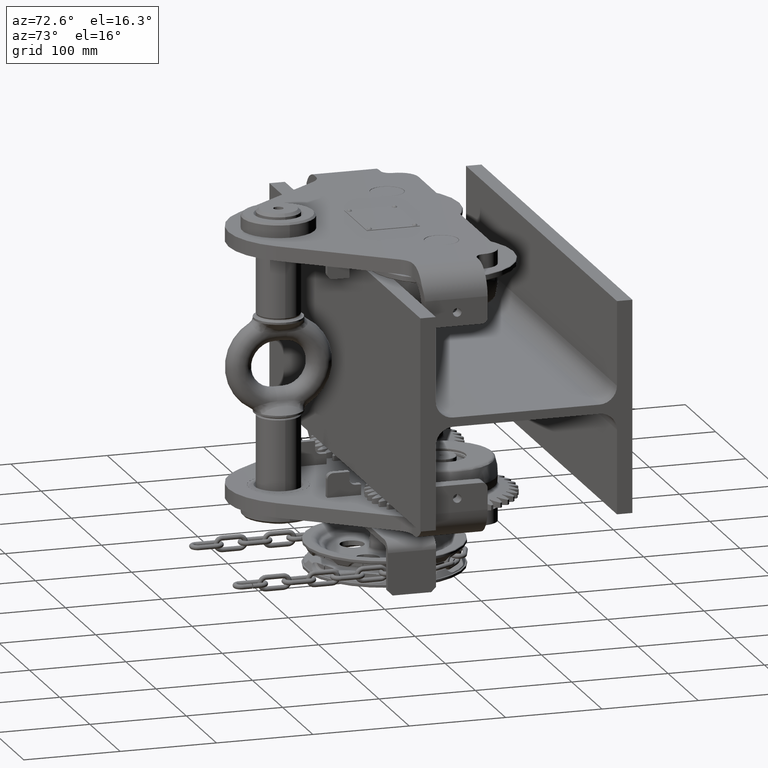
[diagram: clean part render]
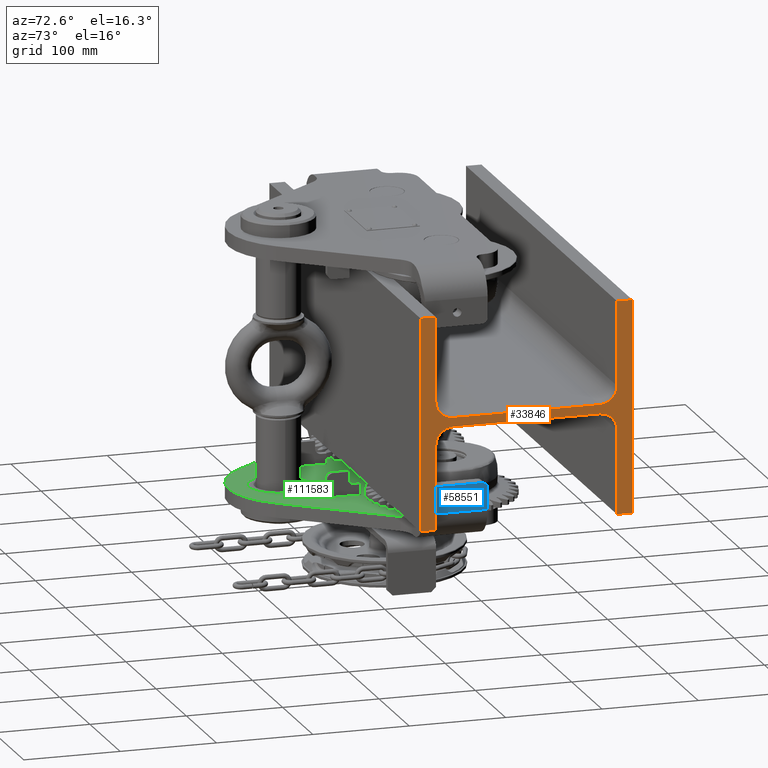
[diagram: same view with three faces highlighted in distinct colors, each labeled with its STEP entity id]
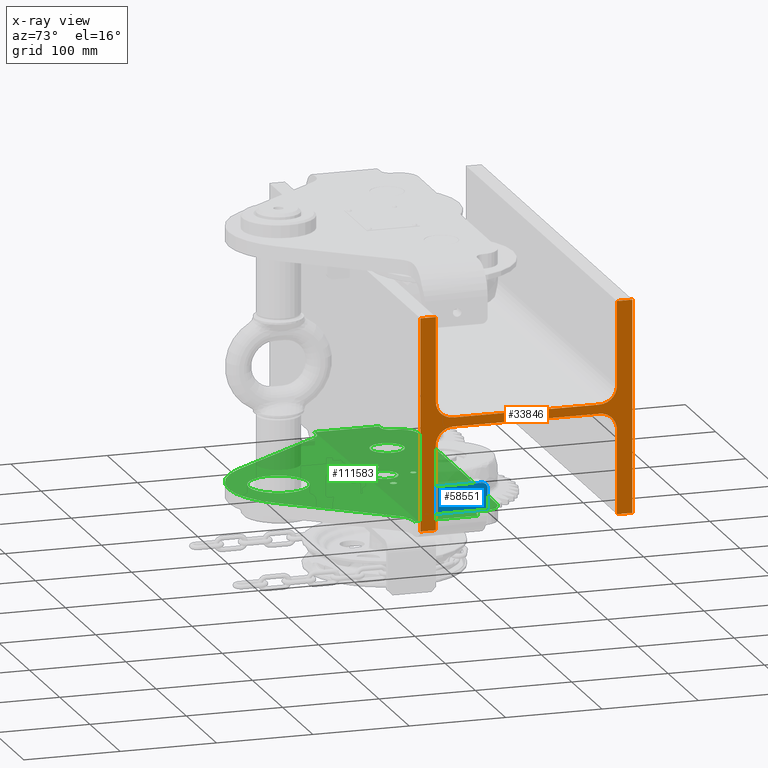
[diagram: x-ray of the same camera — body ghosted, the three highlighted faces saturated]
A machine part, auxiliary view with three faces highlighted in distinct colors.
The next image is the same camera in x-ray (body ghosted, the three faces saturated) — at least one of them is partly hidden behind the body in this view.
Their STEP definitions:

[orange] entity #33846 — the highlighted planar face has unit normal (-1, -0, -0).
#1236 = VERTEX_POINT ( 'NONE', #60660 ) ;
#2281 = VERTEX_POINT ( 'NONE', #28106 ) ;
#3316 = CARTESIAN_POINT ( 'NONE',  ( 249.9999999999998900, 94.00000000000008500, 22.75000000000008200 ) ) ;
#4116 = ORIENTED_EDGE ( 'NONE', *, *, #101947, .F. ) ;
#4841 = ORIENTED_EDGE ( 'NONE', *, *, #38331, .T. ) ;
#4998 = CARTESIAN_POINT ( 'NONE',  ( 249.9999999999998900, -93.99999999999985800, 110.0000000000000100 ) ) ;
#6548 = ORIENTED_EDGE ( 'NONE', *, *, #96724, .T. ) ;
#7384 = DIRECTION ( 'NONE',  ( -1.670477943807616000E-049, 1.000000000000000000, 9.102935034118153400E-016 ) ) ;
#8766 = EDGE_CURVE ( 'NONE', #31603, #54250, #67832, .T. ) ;
#9468 = ORIENTED_EDGE ( 'NONE', *, *, #18122, .F. ) ;
#9830 = DIRECTION ( 'NONE',  ( -1.000000000000000000, -2.480507177830958500E-050, -1.925929944387235900E-034 ) ) ;
#10920 = VECTOR ( 'NONE', #16391, 1000.000000000000000 ) ;
#12412 = DIRECTION ( 'NONE',  ( 1.000000000000000000, 0.0000000000000000000, 7.703719777548941700E-034 ) ) ;
#12937 = CARTESIAN_POINT ( 'NONE',  ( 249.9999999999998900, -109.9999999999998200, -110.0000000000000000 ) ) ;
#15134 = EDGE_CURVE ( 'NONE', #36576, #55048, #99071, .T. ) ;
#15568 = VECTOR ( 'NONE', #109955, 1000.000000000000000 ) ;
#15806 = CARTESIAN_POINT ( 'NONE',  ( 249.9999999999998900, 76.00000000000004300, 4.750000000000047100 ) ) ;
#15871 = CARTESIAN_POINT ( 'NONE',  ( 249.9999999999998900, 94.00000000000008500, -22.74999999999990800 ) ) ;
#16391 = DIRECTION ( 'NONE',  ( -1.925929944387235900E-034, -1.622250703616490400E-016, 1.000000000000000000 ) ) ;
#18122 = EDGE_CURVE ( 'NONE', #2281, #55388, #77370, .T. ) ;
#19631 = VERTEX_POINT ( 'NONE', #41894 ) ;
#21684 = CARTESIAN_POINT ( 'NONE',  ( 249.9999999999998900, -93.99999999999982900, -22.74999999999996800 ) ) ;
#22801 = LINE ( 'NONE', #114700, #56155 ) ;
#23813 = VERTEX_POINT ( 'NONE', #3316 ) ;
#24080 = CARTESIAN_POINT ( 'NONE',  ( 249.9999999999998900, -109.9999999999999100, 110.0000000000000000 ) ) ;
#25125 = VERTEX_POINT ( 'NONE', #21684 ) ;
#25307 = CARTESIAN_POINT ( 'NONE',  ( 249.9999999999998900, -93.99999999999981500, -110.0000000000000100 ) ) ;
#25975 = DIRECTION ( 'NONE',  ( 0.0000000000000000000, 1.000000000000000000, 4.293176542341493300E-017 ) ) ;
#26137 = CARTESIAN_POINT ( 'NONE',  ( 249.9999999999998900, -75.99999999999984400, -4.749999999999960900 ) ) ;
#26947 = CIRCLE ( 'NONE', #102681, 18.00000000000000000 ) ;
#27185 = VECTOR ( 'NONE', #64806, 1000.000000000000000 ) ;
#28106 = CARTESIAN_POINT ( 'NONE',  ( 249.9999999999998900, -109.9999999999999100, 110.0000000000000000 ) ) ;
#28927 = LINE ( 'NONE', #84871, #72166 ) ;
#29689 = CARTESIAN_POINT ( 'NONE',  ( 249.9999999999998900, -75.99999999999963100, 4.750000000000057700 ) ) ;
#30058 = VERTEX_POINT ( 'NONE', #12937 ) ;
#30320 = VECTOR ( 'NONE', #33416, 1000.000000000000000 ) ;
#30683 = DIRECTION ( 'NONE',  ( 0.0000000000000000000, 1.000000000000000000, 4.293176542341493300E-017 ) ) ;
#31603 = VERTEX_POINT ( 'NONE', #43209 ) ;
#33416 = DIRECTION ( 'NONE',  ( 1.925929944387235900E-034, 6.791627250939927600E-016, -1.000000000000000000 ) ) ;
#33846 = ADVANCED_FACE ( 'NONE', ( #65989 ), #54478, .F. ) ;
#34610 = VERTEX_POINT ( 'NONE', #15806 ) ;
#35405 = CARTESIAN_POINT ( 'NONE',  ( 249.9999999999998900, 76.00000000000007100, -22.74999999999991500 ) ) ;
#35610 = CARTESIAN_POINT ( 'NONE',  ( 249.9999999999998900, -75.99999999999984400, -4.749999999999960900 ) ) ;
#36576 = VERTEX_POINT ( 'NONE', #88996 ) ;
#37172 = VERTEX_POINT ( 'NONE', #43309 ) ;
#37503 = EDGE_CURVE ( 'NONE', #46367, #1236, #55481, .T. ) ;
#37983 = DIRECTION ( 'NONE',  ( -1.000000000000000000, -0.0000000000000000000, -7.703719777548941700E-034 ) ) ;
#38331 = EDGE_CURVE ( 'NONE', #2281, #30058, #46740, .T. ) ;
#38372 = CARTESIAN_POINT ( 'NONE',  ( 249.9999999999998900, -75.99999999999984400, -22.74999999999996400 ) ) ;
#38939 = DIRECTION ( 'NONE',  ( 1.000000000000000000, 0.0000000000000000000, 7.703719777548941700E-034 ) ) ;
#41490 = ORIENTED_EDGE ( 'NONE', *, *, #8766, .T. ) ;
#41894 = CARTESIAN_POINT ( 'NONE',  ( 249.9999999999998900, -93.99999999999981500, -110.0000000000000100 ) ) ;
#42095 = EDGE_CURVE ( 'NONE', #46367, #37172, #74177, .T. ) ;
#42757 = VECTOR ( 'NONE', #101445, 1000.000000000000000 ) ;
#43097 = DIRECTION ( 'NONE',  ( -1.925929944387235900E-034, -3.610472452587044400E-016, 1.000000000000000000 ) ) ;
#43209 = CARTESIAN_POINT ( 'NONE',  ( 249.9999999999998900, 110.0000000000001600, -109.9999999999999400 ) ) ;
#43257 = AXIS2_PLACEMENT_3D ( 'NONE', #35405, #61173, #70111 ) ;
#43309 = CARTESIAN_POINT ( 'NONE',  ( 249.9999999999998900, 76.00000000000007100, -4.749999999999940500 ) ) ;
#43406 = ORIENTED_EDGE ( 'NONE', *, *, #37503, .T. ) ;
#43964 = ORIENTED_EDGE ( 'NONE', *, *, #87360, .T. ) ;
#44012 = VECTOR ( 'NONE', #49632, 1000.000000000000000 ) ;
#44139 = VECTOR ( 'NONE', #64842, 1000.000000000000000 ) ;
#46130 = CARTESIAN_POINT ( 'NONE',  ( 249.9999999999998900, -109.9999999999999100, 110.0000000000000000 ) ) ;
#46367 = VERTEX_POINT ( 'NONE', #15871 ) ;
#46740 = LINE ( 'NONE', #46130, #27185 ) ;
#47706 = CARTESIAN_POINT ( 'NONE',  ( 249.9999999999998900, 94.00000000000014200, -109.9999999999999100 ) ) ;
#48050 = VECTOR ( 'NONE', #7384, 1000.000000000000000 ) ;
#49632 = DIRECTION ( 'NONE',  ( 1.670477943807623000E-049, 1.000000000000000000, -8.244299725649890000E-016 ) ) ;
#53354 = EDGE_CURVE ( 'NONE', #109257, #54250, #28927, .T. ) ;
#53418 = CARTESIAN_POINT ( 'NONE',  ( 249.9999999999998900, 110.0000000000001600, 110.0000000000000700 ) ) ;
#54250 = VERTEX_POINT ( 'NONE', #53418 ) ;
#54478 = PLANE ( 'NONE',  #107002 ) ;
#54754 = ORIENTED_EDGE ( 'NONE', *, *, #15134, .F. ) ;
#54913 = ORIENTED_EDGE ( 'NONE', *, *, #103802, .T. ) ;
#55048 = VERTEX_POINT ( 'NONE', #29689 ) ;
#55388 = VERTEX_POINT ( 'NONE', #78339 ) ;
#55481 = LINE ( 'NONE', #77548, #30320 ) ;
#56155 = VECTOR ( 'NONE', #43097, 1000.000000000000000 ) ;
#58556 = ORIENTED_EDGE ( 'NONE', *, *, #94132, .F. ) ;
#60660 = CARTESIAN_POINT ( 'NONE',  ( 249.9999999999998900, 94.00000000000014200, -109.9999999999999100 ) ) ;
#61173 = DIRECTION ( 'NONE',  ( 1.000000000000000000, 0.0000000000000000000, 7.703719777548941700E-034 ) ) ;
#62280 = LINE ( 'NONE', #4998, #42757 ) ;
#63206 = EDGE_CURVE ( 'NONE', #55388, #36576, #62280, .T. ) ;
#64806 = DIRECTION ( 'NONE',  ( 1.925929944387235900E-034, 4.554710308673295900E-016, -1.000000000000000000 ) ) ;
#64842 = DIRECTION ( 'NONE',  ( -1.925929944387235900E-034, -4.293176542341593100E-017, 1.000000000000000000 ) ) ;
#64887 = DIRECTION ( 'NONE',  ( 0.0000000000000000000, 0.0000000000000000000, 1.000000000000000000 ) ) ;
#65638 = CARTESIAN_POINT ( 'NONE',  ( 249.9999999999998900, -75.99999999999963100, 22.75000000000007100 ) ) ;
#65989 = FACE_OUTER_BOUND ( 'NONE', #71126, .T. ) ;
#67030 = ORIENTED_EDGE ( 'NONE', *, *, #53354, .F. ) ;
#67832 = LINE ( 'NONE', #92487, #44139 ) ;
#67942 = LINE ( 'NONE', #35610, #88858 ) ;
#68150 = DIRECTION ( 'NONE',  ( 0.0000000000000000000, 1.000000000000000000, 4.293176542341493300E-017 ) ) ;
#69220 = CARTESIAN_POINT ( 'NONE',  ( 249.9999999999998900, 94.00000000000005700, 110.0000000000000700 ) ) ;
#70111 = DIRECTION ( 'NONE',  ( 0.0000000000000000000, 0.0000000000000000000, -1.000000000000000000 ) ) ;
#70905 = DIRECTION ( 'NONE',  ( -1.925929944387235900E-034, -4.293176542341593100E-017, 1.000000000000000000 ) ) ;
#71126 = EDGE_LOOP ( 'NONE', ( #73085, #84370, #43964, #88911, #43406, #54913, #41490, #67030, #58556, #4116, #71763, #54754, #113394, #9468, #4841, #6548 ) ) ;
#71763 = ORIENTED_EDGE ( 'NONE', *, *, #84324, .F. ) ;
#72094 = CIRCLE ( 'NONE', #84841, 18.00000000000002500 ) ;
#72166 = VECTOR ( 'NONE', #30683, 1000.000000000000000 ) ;
#73085 = ORIENTED_EDGE ( 'NONE', *, *, #84366, .T. ) ;
#74105 = DIRECTION ( 'NONE',  ( 0.0000000000000000000, 0.0000000000000000000, -1.000000000000000000 ) ) ;
#74177 = CIRCLE ( 'NONE', #43257, 17.99999999999997500 ) ;
#74665 = DIRECTION ( 'NONE',  ( 0.0000000000000000000, 0.0000000000000000000, -1.000000000000000000 ) ) ;
#77370 = LINE ( 'NONE', #24080, #48050 ) ;
#77548 = CARTESIAN_POINT ( 'NONE',  ( 249.9999999999998900, 94.00000000000008500, -22.74999999999990800 ) ) ;
#78339 = CARTESIAN_POINT ( 'NONE',  ( 249.9999999999998900, -93.99999999999985800, 110.0000000000000100 ) ) ;
#80595 = VECTOR ( 'NONE', #68150, 1000.000000000000000 ) ;
#83410 = LINE ( 'NONE', #113263, #80595 ) ;
#83460 = CARTESIAN_POINT ( 'NONE',  ( 249.9999999999998900, 76.00000000000004300, 22.75000000000008200 ) ) ;
#83847 = LINE ( 'NONE', #47706, #15568 ) ;
#84324 = EDGE_CURVE ( 'NONE', #55048, #34610, #83410, .T. ) ;
#84366 = EDGE_CURVE ( 'NONE', #19631, #25125, #94385, .T. ) ;
#84370 = ORIENTED_EDGE ( 'NONE', *, *, #112057, .T. ) ;
#84841 = AXIS2_PLACEMENT_3D ( 'NONE', #83460, #38939, #74105 ) ;
#84871 = CARTESIAN_POINT ( 'NONE',  ( 249.9999999999998900, 94.00000000000005700, 110.0000000000000700 ) ) ;
#85477 = CARTESIAN_POINT ( 'NONE',  ( 249.9999999999998900, -109.9999999999998200, -110.0000000000000000 ) ) ;
#87360 = EDGE_CURVE ( 'NONE', #108914, #37172, #67942, .T. ) ;
#88858 = VECTOR ( 'NONE', #25975, 1000.000000000000000 ) ;
#88911 = ORIENTED_EDGE ( 'NONE', *, *, #42095, .F. ) ;
#88996 = CARTESIAN_POINT ( 'NONE',  ( 249.9999999999998900, -93.99999999999963100, 22.75000000000000700 ) ) ;
#89192 = CARTESIAN_POINT ( 'NONE',  ( 249.9999999999998900, -75.99999999999984400, -22.74999999999996400 ) ) ;
#91413 = LINE ( 'NONE', #85477, #44012 ) ;
#92487 = CARTESIAN_POINT ( 'NONE',  ( 249.9999999999998900, 110.0000000000001600, -109.9999999999999400 ) ) ;
#94132 = EDGE_CURVE ( 'NONE', #23813, #109257, #22801, .T. ) ;
#94385 = LINE ( 'NONE', #25307, #10920 ) ;
#96724 = EDGE_CURVE ( 'NONE', #30058, #19631, #91413, .T. ) ;
#99071 = CIRCLE ( 'NONE', #112646, 18.00000000000001400 ) ;
#101445 = DIRECTION ( 'NONE',  ( 1.925929944387235900E-034, 2.667384474064545400E-015, -1.000000000000000000 ) ) ;
#101947 = EDGE_CURVE ( 'NONE', #34610, #23813, #72094, .T. ) ;
#102681 = AXIS2_PLACEMENT_3D ( 'NONE', #38372, #37983, #64887 ) ;
#103802 = EDGE_CURVE ( 'NONE', #1236, #31603, #83847, .T. ) ;
#107002 = AXIS2_PLACEMENT_3D ( 'NONE', #89192, #9830, #70905 ) ;
#108914 = VERTEX_POINT ( 'NONE', #26137 ) ;
#109257 = VERTEX_POINT ( 'NONE', #69220 ) ;
#109955 = DIRECTION ( 'NONE',  ( 3.340955887615240800E-049, 1.000000000000000000, -1.691791710553390200E-015 ) ) ;
#112057 = EDGE_CURVE ( 'NONE', #25125, #108914, #26947, .T. ) ;
#112646 = AXIS2_PLACEMENT_3D ( 'NONE', #65638, #12412, #74665 ) ;
#113263 = CARTESIAN_POINT ( 'NONE',  ( 249.9999999999998900, -75.99999999999963100, 4.750000000000040900 ) ) ;
#113394 = ORIENTED_EDGE ( 'NONE', *, *, #63206, .F. ) ;
#114700 = CARTESIAN_POINT ( 'NONE',  ( 249.9999999999998900, 94.00000000000008500, 22.75000000000008200 ) ) ;

[blue] entity #58551 — the highlighted planar face has unit normal (1, 0, 0).
#3618 = DIRECTION ( 'NONE',  ( 0.0000000000000000000, -1.000000000000000000, 0.0000000000000000000 ) ) ;
#6225 = EDGE_CURVE ( 'NONE', #33947, #98155, #7227, .T. ) ;
#6643 = FACE_OUTER_BOUND ( 'NONE', #46968, .T. ) ;
#7227 = LINE ( 'NONE', #96524, #25254 ) ;
#7568 = EDGE_CURVE ( 'NONE', #13212, #26899, #25960, .T. ) ;
#8314 = CARTESIAN_POINT ( 'NONE',  ( 194.9999999999999700, -84.68263209334946900, -87.16496139423934200 ) ) ;
#13212 = VERTEX_POINT ( 'NONE', #56137 ) ;
#15714 = ORIENTED_EDGE ( 'NONE', *, *, #86000, .F. ) ;
#16427 = FACE_BOUND ( 'NONE', #78749, .T. ) ;
#20030 = EDGE_CURVE ( 'NONE', #26899, #13212, #23499, .T. ) ;
#23499 = CIRCLE ( 'NONE', #35029, 4.500000000000003600 ) ;
#25254 = VECTOR ( 'NONE', #70467, 1000.000000000000100 ) ;
#25960 = CIRCLE ( 'NONE', #43779, 4.500000000000003600 ) ;
#26829 = CARTESIAN_POINT ( 'NONE',  ( 194.9999999999999700, -23.00000000000002100, -81.99999999999965900 ) ) ;
#26899 = VERTEX_POINT ( 'NONE', #100919 ) ;
#27994 = ORIENTED_EDGE ( 'NONE', *, *, #37885, .T. ) ;
#29268 = AXIS2_PLACEMENT_3D ( 'NONE', #33946, #96251, #34710 ) ;
#29368 = ORIENTED_EDGE ( 'NONE', *, *, #20030, .F. ) ;
#32974 = CIRCLE ( 'NONE', #60668, 6.000000000000005300 ) ;
#33946 = CARTESIAN_POINT ( 'NONE',  ( 194.9999999999999700, -29.00000000000001800, -87.99999999999965900 ) ) ;
#33947 = VERTEX_POINT ( 'NONE', #8314 ) ;
#34585 = LINE ( 'NONE', #111366, #54137 ) ;
#34710 = DIRECTION ( 'NONE',  ( 0.0000000000000000000, -1.000000000000000000, 0.0000000000000000000 ) ) ;
#35029 = AXIS2_PLACEMENT_3D ( 'NONE', #47921, #110174, #3618 ) ;
#35740 = CARTESIAN_POINT ( 'NONE',  ( 194.9999999999999700, -87.89188747946420200, -109.9999999999996900 ) ) ;
#37885 = EDGE_CURVE ( 'NONE', #105371, #33947, #32974, .T. ) ;
#43779 = AXIS2_PLACEMENT_3D ( 'NONE', #110623, #57262, #102421 ) ;
#44714 = DIRECTION ( 'NONE',  ( 0.0000000000000000000, 1.224606353822377300E-016, -1.000000000000000000 ) ) ;
#46968 = EDGE_LOOP ( 'NONE', ( #106909, #27994, #59076, #110217, #15714, #48053 ) ) ;
#47809 = CARTESIAN_POINT ( 'NONE',  ( 194.9999999999999700, -231.0000000000000000, -109.9999999999997000 ) ) ;
#47921 = CARTESIAN_POINT ( 'NONE',  ( 194.9999999999999700, -54.50000000000002100, -95.99999999999967300 ) ) ;
#48053 = ORIENTED_EDGE ( 'NONE', *, *, #82122, .T. ) ;
#48260 = VERTEX_POINT ( 'NONE', #60251 ) ;
#48581 = CARTESIAN_POINT ( 'NONE',  ( 194.9999999999999700, -78.74102368090005700, -87.99999999999967300 ) ) ;
#52766 = VERTEX_POINT ( 'NONE', #107982 ) ;
#54137 = VECTOR ( 'NONE', #57251, 1000.000000000000000 ) ;
#56137 = CARTESIAN_POINT ( 'NONE',  ( 194.9999999999999700, -59.00000000000002100, -95.99999999999967300 ) ) ;
#57251 = DIRECTION ( 'NONE',  ( 0.0000000000000000000, 1.000000000000000000, 1.224606353822377300E-016 ) ) ;
#57262 = DIRECTION ( 'NONE',  ( 1.000000000000000000, 0.0000000000000000000, 0.0000000000000000000 ) ) ;
#58551 = ADVANCED_FACE ( 'NONE', ( #16427, #6643 ), #92178, .T. ) ;
#59076 = ORIENTED_EDGE ( 'NONE', *, *, #6225, .T. ) ;
#60251 = CARTESIAN_POINT ( 'NONE',  ( 194.9999999999999700, -23.00000000000001800, -109.9999999999996700 ) ) ;
#60504 = AXIS2_PLACEMENT_3D ( 'NONE', #47809, #110430, #108898 ) ;
#60668 = AXIS2_PLACEMENT_3D ( 'NONE', #48581, #65322, #84070 ) ;
#62465 = ORIENTED_EDGE ( 'NONE', *, *, #7568, .F. ) ;
#65322 = DIRECTION ( 'NONE',  ( 1.000000000000000000, 0.0000000000000000000, 0.0000000000000000000 ) ) ;
#65359 = VERTEX_POINT ( 'NONE', #111334 ) ;
#65673 = VECTOR ( 'NONE', #44714, 1000.000000000000000 ) ;
#65745 = VECTOR ( 'NONE', #87667, 1000.000000000000000 ) ;
#70467 = DIRECTION ( 'NONE',  ( 0.0000000000000000000, -0.1391731009600585300, -0.9902680687415712500 ) ) ;
#78749 = EDGE_LOOP ( 'NONE', ( #62465, #29368 ) ) ;
#81426 = EDGE_CURVE ( 'NONE', #98155, #48260, #34585, .T. ) ;
#82122 = EDGE_CURVE ( 'NONE', #52766, #65359, #96964, .T. ) ;
#84070 = DIRECTION ( 'NONE',  ( 0.0000000000000000000, -1.000000000000000000, 0.0000000000000000000 ) ) ;
#86000 = EDGE_CURVE ( 'NONE', #52766, #48260, #89365, .T. ) ;
#86521 = CARTESIAN_POINT ( 'NONE',  ( 194.9999999999999700, -231.0000000000000000, -81.99999999999968700 ) ) ;
#87667 = DIRECTION ( 'NONE',  ( 0.0000000000000000000, 1.000000000000000000, 1.224606353822377300E-016 ) ) ;
#89365 = LINE ( 'NONE', #26829, #65673 ) ;
#92178 = PLANE ( 'NONE',  #60504 ) ;
#95166 = EDGE_CURVE ( 'NONE', #105371, #65359, #104710, .T. ) ;
#96251 = DIRECTION ( 'NONE',  ( 1.000000000000000000, 0.0000000000000000000, 0.0000000000000000000 ) ) ;
#96524 = CARTESIAN_POINT ( 'NONE',  ( 194.9999999999999700, -89.99999999999997200, -124.9999999999996700 ) ) ;
#96964 = CIRCLE ( 'NONE', #29268, 5.999999999999998200 ) ;
#98155 = VERTEX_POINT ( 'NONE', #35740 ) ;
#100919 = CARTESIAN_POINT ( 'NONE',  ( 194.9999999999999700, -50.00000000000001400, -95.99999999999967300 ) ) ;
#102421 = DIRECTION ( 'NONE',  ( 0.0000000000000000000, -1.000000000000000000, 0.0000000000000000000 ) ) ;
#104710 = LINE ( 'NONE', #86521, #65745 ) ;
#105371 = VERTEX_POINT ( 'NONE', #115268 ) ;
#106909 = ORIENTED_EDGE ( 'NONE', *, *, #95166, .F. ) ;
#107982 = CARTESIAN_POINT ( 'NONE',  ( 194.9999999999999700, -23.00000000000002100, -87.99999999999965900 ) ) ;
#108898 = DIRECTION ( 'NONE',  ( 0.0000000000000000000, -1.000000000000000000, -1.224606353822377300E-016 ) ) ;
#110174 = DIRECTION ( 'NONE',  ( 1.000000000000000000, 0.0000000000000000000, 0.0000000000000000000 ) ) ;
#110217 = ORIENTED_EDGE ( 'NONE', *, *, #81426, .T. ) ;
#110430 = DIRECTION ( 'NONE',  ( 1.000000000000000000, 0.0000000000000000000, 0.0000000000000000000 ) ) ;
#110623 = CARTESIAN_POINT ( 'NONE',  ( 194.9999999999999700, -54.50000000000002100, -95.99999999999967300 ) ) ;
#111334 = CARTESIAN_POINT ( 'NONE',  ( 194.9999999999999700, -29.00000000000002500, -81.99999999999965900 ) ) ;
#111366 = CARTESIAN_POINT ( 'NONE',  ( 194.9999999999999700, -231.0000000000000000, -109.9999999999997000 ) ) ;
#115268 = CARTESIAN_POINT ( 'NONE',  ( 194.9999999999999700, -78.74102368090005700, -81.99999999999967300 ) ) ;

[green] entity #111583 — the highlighted planar face has unit normal (0, -0, 1).
#1005 = CARTESIAN_POINT ( 'NONE',  ( 159.6978176102733800, -110.0000000000000300, -124.9999999999996900 ) ) ;
#1563 = ORIENTED_EDGE ( 'NONE', *, *, #20175, .T. ) ;
#1644 = ORIENTED_EDGE ( 'NONE', *, *, #36986, .T. ) ;
#1931 = AXIS2_PLACEMENT_3D ( 'NONE', #91564, #110578, #38178 ) ;
#2565 = DIRECTION ( 'NONE',  ( -0.0000000000000000000, 1.224606353822377300E-016, -1.000000000000000000 ) ) ;
#2594 = CARTESIAN_POINT ( 'NONE',  ( -90.00000000000002800, -38.00000000000001400, -124.9999999999996700 ) ) ;
#2692 = CIRCLE ( 'NONE', #104634, 3.399999999999986100 ) ;
#2806 = CARTESIAN_POINT ( 'NONE',  ( -159.6978176102733800, -89.99999999999997200, -124.9999999999996700 ) ) ;
#3625 = ORIENTED_EDGE ( 'NONE', *, *, #94483, .T. ) ;
#4012 = EDGE_CURVE ( 'NONE', #4830, #21620, #50982, .T. ) ;
#4372 = CIRCLE ( 'NONE', #23638, 20.00000000000000400 ) ;
#4603 = CARTESIAN_POINT ( 'NONE',  ( -164.9999999999999700, -89.99999999999985800, -124.9999999999996900 ) ) ;
#4667 = EDGE_CURVE ( 'NONE', #115499, #67163, #105013, .T. ) ;
#4830 = VERTEX_POINT ( 'NONE', #75712 ) ;
#5021 = FACE_BOUND ( 'NONE', #5945, .T. ) ;
#5044 = ORIENTED_EDGE ( 'NONE', *, *, #61356, .T. ) ;
#5450 = DIRECTION ( 'NONE',  ( 0.0000000000000000000, -1.224606353822377300E-016, 1.000000000000000000 ) ) ;
#5945 = EDGE_LOOP ( 'NONE', ( #21990, #85013 ) ) ;
#6077 = VECTOR ( 'NONE', #22428, 1000.000000000000000 ) ;
#6449 = DIRECTION ( 'NONE',  ( 0.0000000000000000000, -1.000000000000000000, 0.0000000000000000000 ) ) ;
#6496 = VERTEX_POINT ( 'NONE', #92978 ) ;
#7233 = AXIS2_PLACEMENT_3D ( 'NONE', #52906, #71612, #9390 ) ;
#8486 = VECTOR ( 'NONE', #50859, 1000.000000000000100 ) ;
#8807 = CIRCLE ( 'NONE', #21584, 13.99999999999999800 ) ;
#8915 = VECTOR ( 'NONE', #70106, 1000.000000000000000 ) ;
#9390 = DIRECTION ( 'NONE',  ( 0.0000000000000000000, -1.000000000000000000, 0.0000000000000000000 ) ) ;
#9860 = AXIS2_PLACEMENT_3D ( 'NONE', #90765, #56469, #74455 ) ;
#9909 = CARTESIAN_POINT ( 'NONE',  ( 149.9999999987898600, -231.0000000017486200, -124.9999999999997000 ) ) ;
#10269 = ORIENTED_EDGE ( 'NONE', *, *, #56628, .F. ) ;
#10620 = FACE_BOUND ( 'NONE', #36080, .T. ) ;
#11878 = CARTESIAN_POINT ( 'NONE',  ( 160.0000000000000000, -23.00000000000002100, -124.9999999999996700 ) ) ;
#11910 = DIRECTION ( 'NONE',  ( 0.0000000000000000000, -1.224606353822377300E-016, 1.000000000000000000 ) ) ;
#13128 = EDGE_LOOP ( 'NONE', ( #90852, #15153 ) ) ;
#13286 = VERTEX_POINT ( 'NONE', #11878 ) ;
#15028 = CIRCLE ( 'NONE', #83088, 3.399999999999986100 ) ;
#15153 = ORIENTED_EDGE ( 'NONE', *, *, #65316, .F. ) ;
#15421 = AXIS2_PLACEMENT_3D ( 'NONE', #30652, #75508, #30260 ) ;
#15636 = EDGE_CURVE ( 'NONE', #64899, #35498, #72593, .T. ) ;
#16777 = CARTESIAN_POINT ( 'NONE',  ( -2.604107009682261500E-014, -83.07999999999999800, -124.9999999999996700 ) ) ;
#17098 = ORIENTED_EDGE ( 'NONE', *, *, #100995, .T. ) ;
#17159 = ORIENTED_EDGE ( 'NONE', *, *, #101268, .F. ) ;
#17308 = VERTEX_POINT ( 'NONE', #99883 ) ;
#17405 = CARTESIAN_POINT ( 'NONE',  ( -90.00000000000002800, -20.50000000000000700, -124.9999999999996700 ) ) ;
#17582 = CARTESIAN_POINT ( 'NONE',  ( -130.0100000000000200, -12.98999999999997700, -124.9999999999996700 ) ) ;
#18024 = AXIS2_PLACEMENT_3D ( 'NONE', #87339, #61569, #96228 ) ;
#18945 = CARTESIAN_POINT ( 'NONE',  ( -143.9943650573695200, -97.61446093548219900, -124.9999999999996700 ) ) ;
#19506 = CIRCLE ( 'NONE', #9860, 13.99999999999999800 ) ;
#19523 = DIRECTION ( 'NONE',  ( 1.000000000000000000, 0.0000000000000000000, 0.0000000000000000000 ) ) ;
#19642 = DIRECTION ( 'NONE',  ( 1.387778780781445500E-015, -1.000000000000000000, 0.0000000000000000000 ) ) ;
#19650 = EDGE_CURVE ( 'NONE', #81788, #83354, #111484, .T. ) ;
#19861 = VERTEX_POINT ( 'NONE', #107621 ) ;
#20147 = DIRECTION ( 'NONE',  ( 0.0000000000000000000, -1.000000000000000000, 0.0000000000000000000 ) ) ;
#20175 = EDGE_CURVE ( 'NONE', #34210, #115447, #111233, .T. ) ;
#21178 = DIRECTION ( 'NONE',  ( 0.0000000000000000000, -1.224606353822377300E-016, 1.000000000000000000 ) ) ;
#21553 = AXIS2_PLACEMENT_3D ( 'NONE', #61746, #71909, #89042 ) ;
#21584 = AXIS2_PLACEMENT_3D ( 'NONE', #34802, #115423, #104912 ) ;
#21620 = VERTEX_POINT ( 'NONE', #39740 ) ;
#21774 = DIRECTION ( 'NONE',  ( 0.0000000000000000000, -1.000000000000000000, 0.0000000000000000000 ) ) ;
#21990 = ORIENTED_EDGE ( 'NONE', *, *, #31389, .F. ) ;
#22428 = DIRECTION ( 'NONE',  ( 1.000000000000000000, 1.572456643570348900E-015, 1.925640396826458500E-031 ) ) ;
#22947 = AXIS2_PLACEMENT_3D ( 'NONE', #57560, #48285, #93406 ) ;
#23168 = VERTEX_POINT ( 'NONE', #29640 ) ;
#23235 = EDGE_CURVE ( 'NONE', #92270, #41596, #41167, .T. ) ;
#23240 = EDGE_CURVE ( 'NONE', #109024, #104156, #39681, .T. ) ;
#23500 = ORIENTED_EDGE ( 'NONE', *, *, #79003, .T. ) ;
#23638 = AXIS2_PLACEMENT_3D ( 'NONE', #1005, #2565, #19642 ) ;
#24386 = CARTESIAN_POINT ( 'NONE',  ( -87.19281609471916300, -169.6323540945924700, -124.9999999999997000 ) ) ;
#25830 = FACE_BOUND ( 'NONE', #103460, .T. ) ;
#26001 = ORIENTED_EDGE ( 'NONE', *, *, #62214, .T. ) ;
#27084 = VECTOR ( 'NONE', #54388, 1000.000000000000000 ) ;
#27321 = CARTESIAN_POINT ( 'NONE',  ( 89.99999999999994300, -37.99999999999999300, -124.9999999999996700 ) ) ;
#28546 = CARTESIAN_POINT ( 'NONE',  ( -90.00000000000002800, -38.00000000000001400, -124.9999999999996700 ) ) ;
#28671 = EDGE_CURVE ( 'NONE', #67163, #115499, #92451, .T. ) ;
#29640 = CARTESIAN_POINT ( 'NONE',  ( -2.738818157588470800E-014, -42.07999999999999100, -124.9999999999996700 ) ) ;
#29994 = DIRECTION ( 'NONE',  ( 0.0000000000000000000, -1.000000000000000000, 0.0000000000000000000 ) ) ;
#30260 = DIRECTION ( 'NONE',  ( 0.0000000000000000000, -1.000000000000000000, 0.0000000000000000000 ) ) ;
#30652 = CARTESIAN_POINT ( 'NONE',  ( 130.0099999999999900, -12.99000000000000900, -124.9999999999996700 ) ) ;
#31389 = EDGE_CURVE ( 'NONE', #41596, #92270, #58681, .T. ) ;
#31391 = FACE_BOUND ( 'NONE', #13128, .T. ) ;
#31433 = CARTESIAN_POINT ( 'NONE',  ( 29.99999999999997200, -69.07999999999999800, -124.9999999999996700 ) ) ;
#31821 = VERTEX_POINT ( 'NONE', #16777 ) ;
#32864 = EDGE_CURVE ( 'NONE', #17308, #37074, #15028, .T. ) ;
#33718 = VECTOR ( 'NONE', #92100, 1000.000000000000000 ) ;
#33827 = CARTESIAN_POINT ( 'NONE',  ( -159.6978176102734300, -109.9999999999999900, -124.9999999999996900 ) ) ;
#33849 = DIRECTION ( 'NONE',  ( 0.0000000000000000000, -1.224606353822377300E-016, 1.000000000000000000 ) ) ;
#34210 = VERTEX_POINT ( 'NONE', #60263 ) ;
#34802 = CARTESIAN_POINT ( 'NONE',  ( -2.775557561562891400E-014, -69.07999999999999800, -124.9999999999996700 ) ) ;
#34818 = ORIENTED_EDGE ( 'NONE', *, *, #65167, .F. ) ;
#34852 = VERTEX_POINT ( 'NONE', #55822 ) ;
#34996 = VERTEX_POINT ( 'NONE', #110996 ) ;
#35396 = LINE ( 'NONE', #98766, #27084 ) ;
#35498 = VERTEX_POINT ( 'NONE', #53397 ) ;
#35803 = CARTESIAN_POINT ( 'NONE',  ( -165.0000000000000600, -23.00000000000009600, -124.9999999999996700 ) ) ;
#36080 = EDGE_LOOP ( 'NONE', ( #55912, #17159 ) ) ;
#36439 = CARTESIAN_POINT ( 'NONE',  ( 160.0000000000000000, -13.00000000000001800, -124.9999999999996700 ) ) ;
#36982 = ORIENTED_EDGE ( 'NONE', *, *, #44853, .T. ) ;
#36986 = EDGE_CURVE ( 'NONE', #35498, #34210, #48538, .T. ) ;
#37074 = VERTEX_POINT ( 'NONE', #78030 ) ;
#37477 = DIRECTION ( 'NONE',  ( 0.0000000000000000000, -1.000000000000000000, 0.0000000000000000000 ) ) ;
#37582 = ORIENTED_EDGE ( 'NONE', *, *, #52572, .T. ) ;
#38111 = AXIS2_PLACEMENT_3D ( 'NONE', #17582, #33849, #97313 ) ;
#38178 = DIRECTION ( 'NONE',  ( 0.0000000000000000000, -1.000000000000000000, 0.0000000000000000000 ) ) ;
#39484 = CARTESIAN_POINT ( 'NONE',  ( -165.0000000000002600, -89.99999999999997200, -124.9999999999996900 ) ) ;
#39502 = AXIS2_PLACEMENT_3D ( 'NONE', #28546, #11910, #37477 ) ;
#39681 = CIRCLE ( 'NONE', #1931, 3.399999999999986100 ) ;
#39740 = CARTESIAN_POINT ( 'NONE',  ( -2.394692407028064300E-014, -210.1000000000000200, -124.9999999999997000 ) ) ;
#39752 = CIRCLE ( 'NONE', #68495, 2.999999999999995600 ) ;
#39788 = EDGE_LOOP ( 'NONE', ( #66477, #97097 ) ) ;
#39879 = VECTOR ( 'NONE', #89685, 1000.000000000000000 ) ;
#40054 = CARTESIAN_POINT ( 'NONE',  ( -2.775557561562891400E-014, -39.07999999999999800, -124.9999999999996700 ) ) ;
#40098 = VECTOR ( 'NONE', #48451, 1000.000000000000000 ) ;
#40220 = ORIENTED_EDGE ( 'NONE', *, *, #87188, .F. ) ;
#40273 = CARTESIAN_POINT ( 'NONE',  ( -130.0100000000000200, 6.999999999999984000, -124.9999999999996700 ) ) ;
#40580 = CARTESIAN_POINT ( 'NONE',  ( -165.0000000000000000, -22.99999999999998600, -124.9999999999996700 ) ) ;
#40774 = EDGE_CURVE ( 'NONE', #23168, #41988, #39752, .T. ) ;
#40932 = CIRCLE ( 'NONE', #51433, 10.00000000000000500 ) ;
#41167 = CIRCLE ( 'NONE', #115228, 17.49999999999999600 ) ;
#41596 = VERTEX_POINT ( 'NONE', #87062 ) ;
#41988 = VERTEX_POINT ( 'NONE', #49187 ) ;
#42507 = DIRECTION ( 'NONE',  ( 0.0000000000000000000, -1.224606353822377300E-016, 1.000000000000000000 ) ) ;
#44197 = ORIENTED_EDGE ( 'NONE', *, *, #4012, .F. ) ;
#44853 = EDGE_CURVE ( 'NONE', #34852, #46471, #35396, .T. ) ;
#45569 = CARTESIAN_POINT ( 'NONE',  ( 164.9999999999999400, -89.99999999999998600, -124.9999999999996900 ) ) ;
#46471 = VERTEX_POINT ( 'NONE', #61707 ) ;
#46721 = ORIENTED_EDGE ( 'NONE', *, *, #92781, .T. ) ;
#46900 = DIRECTION ( 'NONE',  ( 0.0000000000000000000, -1.000000000000000000, 0.0000000000000000000 ) ) ;
#47440 = EDGE_CURVE ( 'NONE', #13286, #56779, #40932, .T. ) ;
#47932 = LINE ( 'NONE', #67580, #33718 ) ;
#48285 = DIRECTION ( 'NONE',  ( 0.0000000000000000000, -1.224606353822377300E-016, 1.000000000000000000 ) ) ;
#48451 = DIRECTION ( 'NONE',  ( 0.0000000000000000000, -1.000000000000000000, -1.224606353822377300E-016 ) ) ;
#48538 = LINE ( 'NONE', #101719, #40098 ) ;
#49187 = CARTESIAN_POINT ( 'NONE',  ( -2.775557561562891400E-014, -36.07999999999999800, -124.9999999999996700 ) ) ;
#49280 = VERTEX_POINT ( 'NONE', #101210 ) ;
#49506 = AXIS2_PLACEMENT_3D ( 'NONE', #52852, #71566, #115148 ) ;
#49741 = ORIENTED_EDGE ( 'NONE', *, *, #57102, .T. ) ;
#50616 = CIRCLE ( 'NONE', #21553, 2.999999999999995600 ) ;
#50859 = DIRECTION ( 'NONE',  ( 0.6192769532258889400, -0.7851726276451951300, -9.615273886617175600E-017 ) ) ;
#50982 = CIRCLE ( 'NONE', #49506, 31.10000000000001600 ) ;
#51433 = AXIS2_PLACEMENT_3D ( 'NONE', #36439, #99100, #20147 ) ;
#52284 = FACE_BOUND ( 'NONE', #39788, .T. ) ;
#52326 = CIRCLE ( 'NONE', #15421, 19.99000000000002700 ) ;
#52572 = EDGE_CURVE ( 'NONE', #19861, #105510, #69705, .T. ) ;
#52852 = CARTESIAN_POINT ( 'NONE',  ( -2.775557561562891400E-014, -179.0000000000000300, -124.9999999999997000 ) ) ;
#52906 = CARTESIAN_POINT ( 'NONE',  ( -30.00000000000002800, -69.07999999999999800, -124.9999999999996700 ) ) ;
#53397 = CARTESIAN_POINT ( 'NONE',  ( -150.0000000000000000, -12.99000000000011600, -124.9999999999996600 ) ) ;
#53749 = CIRCLE ( 'NONE', #7233, 3.399999999999986100 ) ;
#53757 = CARTESIAN_POINT ( 'NONE',  ( -2.775557561562891400E-014, -55.07999999999999800, -124.9999999999996700 ) ) ;
#54388 = DIRECTION ( 'NONE',  ( 0.6192769532258889400, 0.7851726276451950200, 9.615273886617173100E-017 ) ) ;
#55822 = CARTESIAN_POINT ( 'NONE',  ( 62.81381021161555400, -200.5421562580712000, -124.9999999999996900 ) ) ;
#55912 = ORIENTED_EDGE ( 'NONE', *, *, #32864, .F. ) ;
#56187 = LINE ( 'NONE', #103588, #8915 ) ;
#56457 = DIRECTION ( 'NONE',  ( 0.0000000000000000000, -1.224606353822377300E-016, 1.000000000000000000 ) ) ;
#56469 = DIRECTION ( 'NONE',  ( 0.0000000000000000000, -1.224606353822377300E-016, 1.000000000000000000 ) ) ;
#56628 = EDGE_CURVE ( 'NONE', #64899, #78334, #68942, .T. ) ;
#56779 = VERTEX_POINT ( 'NONE', #74411 ) ;
#56789 = CARTESIAN_POINT ( 'NONE',  ( -90.00000000000002800, -55.50000000000002100, -124.9999999999996700 ) ) ;
#57102 = EDGE_CURVE ( 'NONE', #46471, #19861, #4372, .T. ) ;
#57125 = LINE ( 'NONE', #35803, #67005 ) ;
#57156 = CARTESIAN_POINT ( 'NONE',  ( 29.99999999999997200, -72.47999999999999000, -124.9999999999996700 ) ) ;
#57560 = CARTESIAN_POINT ( 'NONE',  ( -165.0000000000000300, -231.0000000000000000, -124.9999999999997000 ) ) ;
#57840 = FACE_BOUND ( 'NONE', #88073, .T. ) ;
#58244 = AXIS2_PLACEMENT_3D ( 'NONE', #87587, #69629, #114777 ) ;
#58681 = CIRCLE ( 'NONE', #61178, 17.49999999999999600 ) ;
#60263 = CARTESIAN_POINT ( 'NONE',  ( -150.0000000000000000, -12.99999999999998000, -124.9999999999996600 ) ) ;
#61178 = AXIS2_PLACEMENT_3D ( 'NONE', #27321, #72874, #98882 ) ;
#61356 = EDGE_CURVE ( 'NONE', #105510, #49280, #56187, .T. ) ;
#61569 = DIRECTION ( 'NONE',  ( 0.0000000000000000000, -1.224606353822377300E-016, 1.000000000000000000 ) ) ;
#61707 = CARTESIAN_POINT ( 'NONE',  ( 143.9943650573694900, -97.61446093548224200, -124.9999999999996700 ) ) ;
#61746 = CARTESIAN_POINT ( 'NONE',  ( -2.775557561562891400E-014, -39.07999999999999800, -124.9999999999996700 ) ) ;
#61941 = DIRECTION ( 'NONE',  ( -1.000000000000000000, -1.982541115402067100E-016, -2.427832446635474200E-032 ) ) ;
#62153 = VERTEX_POINT ( 'NONE', #40580 ) ;
#62214 = EDGE_CURVE ( 'NONE', #49280, #13286, #57125, .T. ) ;
#62920 = AXIS2_PLACEMENT_3D ( 'NONE', #33827, #78698, #97654 ) ;
#63332 = VECTOR ( 'NONE', #19523, 1000.000000000000000 ) ;
#63430 = EDGE_LOOP ( 'NONE', ( #96429, #96401 ) ) ;
#63485 = CIRCLE ( 'NONE', #81097, 31.10000000000001600 ) ;
#64899 = VERTEX_POINT ( 'NONE', #40273 ) ;
#65167 = EDGE_CURVE ( 'NONE', #34996, #62153, #105774, .T. ) ;
#65316 = EDGE_CURVE ( 'NONE', #31821, #90577, #19506, .T. ) ;
#65684 = ORIENTED_EDGE ( 'NONE', *, *, #19650, .T. ) ;
#66477 = ORIENTED_EDGE ( 'NONE', *, *, #4667, .F. ) ;
#66825 = DIRECTION ( 'NONE',  ( 1.000000000000000000, -3.931141608925877600E-016, -4.814100992066152800E-032 ) ) ;
#67005 = VECTOR ( 'NONE', #61941, 1000.000000000000000 ) ;
#67163 = VERTEX_POINT ( 'NONE', #17405 ) ;
#67580 = CARTESIAN_POINT ( 'NONE',  ( -165.0000000000002000, -22.99999999999998600, -124.9999999999996700 ) ) ;
#68495 = AXIS2_PLACEMENT_3D ( 'NONE', #40054, #56457, #110939 ) ;
#68942 = LINE ( 'NONE', #82238, #63332 ) ;
#69629 = DIRECTION ( 'NONE',  ( -0.0000000000000000000, 1.224606353822377300E-016, -1.000000000000000000 ) ) ;
#69705 = LINE ( 'NONE', #4603, #114264 ) ;
#70106 = DIRECTION ( 'NONE',  ( 0.0000000000000000000, 1.000000000000000000, 1.224606353822377300E-016 ) ) ;
#70166 = CARTESIAN_POINT ( 'NONE',  ( -2.775557561562891400E-014, -179.0000000000000300, -124.9999999999997000 ) ) ;
#71151 = AXIS2_PLACEMENT_3D ( 'NONE', #2594, #21178, #46900 ) ;
#71566 = DIRECTION ( 'NONE',  ( 0.0000000000000000000, -1.224606353822377300E-016, 1.000000000000000000 ) ) ;
#71612 = DIRECTION ( 'NONE',  ( 0.0000000000000000000, -1.224606353822377300E-016, 1.000000000000000000 ) ) ;
#71909 = DIRECTION ( 'NONE',  ( 0.0000000000000000000, -1.224606353822377300E-016, 1.000000000000000000 ) ) ;
#72449 = CARTESIAN_POINT ( 'NONE',  ( -160.0000000000000000, -22.99999999999998600, -124.9999999999996700 ) ) ;
#72593 = CIRCLE ( 'NONE', #38111, 19.98999999999999100 ) ;
#72874 = DIRECTION ( 'NONE',  ( 0.0000000000000000000, -1.224606353822377300E-016, 1.000000000000000000 ) ) ;
#74091 = CARTESIAN_POINT ( 'NONE',  ( 89.99999999999994300, -37.99999999999999300, -124.9999999999996700 ) ) ;
#74317 = LINE ( 'NONE', #39484, #6077 ) ;
#74411 = CARTESIAN_POINT ( 'NONE',  ( 150.0000000000000000, -13.00000000000002100, -124.9999999999996600 ) ) ;
#74455 = DIRECTION ( 'NONE',  ( 0.0000000000000000000, -1.000000000000000000, 0.0000000000000000000 ) ) ;
#75111 = EDGE_CURVE ( 'NONE', #90577, #31821, #8807, .T. ) ;
#75508 = DIRECTION ( 'NONE',  ( 0.0000000000000000000, -1.224606353822377300E-016, 1.000000000000000000 ) ) ;
#75712 = CARTESIAN_POINT ( 'NONE',  ( -2.775557561562891400E-014, -147.9000000000000100, -124.9999999999997000 ) ) ;
#77685 = DIRECTION ( 'NONE',  ( 0.0000000000000000000, -1.224606353822377300E-016, 1.000000000000000000 ) ) ;
#78030 = CARTESIAN_POINT ( 'NONE',  ( -30.00000000000002800, -72.47999999999999000, -124.9999999999996700 ) ) ;
#78334 = VERTEX_POINT ( 'NONE', #110349 ) ;
#78378 = EDGE_CURVE ( 'NONE', #34996, #115523, #74317, .T. ) ;
#78473 = CARTESIAN_POINT ( 'NONE',  ( -165.0000000000000000, -231.0000000000000000, -124.9999999999997000 ) ) ;
#78698 = DIRECTION ( 'NONE',  ( -0.0000000000000000000, 1.224606353822377300E-016, -1.000000000000000000 ) ) ;
#78960 = LINE ( 'NONE', #9909, #39879 ) ;
#79003 = EDGE_CURVE ( 'NONE', #115523, #81788, #101811, .T. ) ;
#80963 = ORIENTED_EDGE ( 'NONE', *, *, #101488, .T. ) ;
#81097 = AXIS2_PLACEMENT_3D ( 'NONE', #70166, #77685, #6449 ) ;
#81788 = VERTEX_POINT ( 'NONE', #18945 ) ;
#82238 = CARTESIAN_POINT ( 'NONE',  ( -165.0000000000000300, 6.999999999999984000, -124.9999999999996700 ) ) ;
#83088 = AXIS2_PLACEMENT_3D ( 'NONE', #95842, #42507, #104775 ) ;
#83354 = VERTEX_POINT ( 'NONE', #105729 ) ;
#85013 = ORIENTED_EDGE ( 'NONE', *, *, #23235, .F. ) ;
#86132 = CIRCLE ( 'NONE', #18024, 80.00000000000001400 ) ;
#87062 = CARTESIAN_POINT ( 'NONE',  ( 89.99999999999994300, -55.49999999999998600, -124.9999999999996700 ) ) ;
#87188 = EDGE_CURVE ( 'NONE', #104156, #109024, #2692, .T. ) ;
#87339 = CARTESIAN_POINT ( 'NONE',  ( -2.775557561562891400E-014, -151.0000000000000300, -124.9999999999997000 ) ) ;
#87474 = CARTESIAN_POINT ( 'NONE',  ( 89.99999999999994300, -20.49999999999999600, -124.9999999999996700 ) ) ;
#87587 = CARTESIAN_POINT ( 'NONE',  ( -160.0000000000000000, -12.99999999999998000, -124.9999999999996700 ) ) ;
#88073 = EDGE_LOOP ( 'NONE', ( #40220, #100104 ) ) ;
#89042 = DIRECTION ( 'NONE',  ( 0.0000000000000000000, -1.000000000000000000, 0.0000000000000000000 ) ) ;
#89685 = DIRECTION ( 'NONE',  ( 5.551115123124084700E-012, 1.000000000000000000, 1.224606353822377300E-016 ) ) ;
#90577 = VERTEX_POINT ( 'NONE', #53757 ) ;
#90765 = CARTESIAN_POINT ( 'NONE',  ( -2.775557561562891400E-014, -69.07999999999999800, -124.9999999999996700 ) ) ;
#90852 = ORIENTED_EDGE ( 'NONE', *, *, #75111, .F. ) ;
#91138 = ORIENTED_EDGE ( 'NONE', *, *, #78378, .T. ) ;
#91564 = CARTESIAN_POINT ( 'NONE',  ( 29.99999999999997200, -69.07999999999999800, -124.9999999999996700 ) ) ;
#92100 = DIRECTION ( 'NONE',  ( -1.000000000000000000, -8.921435019309292500E-016, -1.092524600985962200E-031 ) ) ;
#92270 = VERTEX_POINT ( 'NONE', #87474 ) ;
#92451 = CIRCLE ( 'NONE', #39502, 17.50000000000000700 ) ;
#92781 = EDGE_CURVE ( 'NONE', #83354, #34852, #86132, .T. ) ;
#92978 = CARTESIAN_POINT ( 'NONE',  ( 150.0000000000000600, -12.99000000000001600, -124.9999999999996600 ) ) ;
#93042 = PLANE ( 'NONE',  #22947 ) ;
#93406 = DIRECTION ( 'NONE',  ( 0.0000000000000000000, -1.000000000000000000, -1.224606353822377300E-016 ) ) ;
#94340 = ORIENTED_EDGE ( 'NONE', *, *, #47440, .T. ) ;
#94483 = EDGE_CURVE ( 'NONE', #115447, #62153, #47932, .T. ) ;
#95842 = CARTESIAN_POINT ( 'NONE',  ( -30.00000000000002800, -69.07999999999999800, -124.9999999999996700 ) ) ;
#96228 = DIRECTION ( 'NONE',  ( 0.0000000000000000000, -1.000000000000000000, -1.734723475976806800E-016 ) ) ;
#96401 = ORIENTED_EDGE ( 'NONE', *, *, #40774, .F. ) ;
#96429 = ORIENTED_EDGE ( 'NONE', *, *, #97695, .F. ) ;
#97097 = ORIENTED_EDGE ( 'NONE', *, *, #28671, .F. ) ;
#97313 = DIRECTION ( 'NONE',  ( 0.0000000000000000000, -1.000000000000000000, 0.0000000000000000000 ) ) ;
#97654 = DIRECTION ( 'NONE',  ( 1.387778780781444500E-015, -1.000000000000000000, 0.0000000000000000000 ) ) ;
#97695 = EDGE_CURVE ( 'NONE', #41988, #23168, #50616, .T. ) ;
#98766 = CARTESIAN_POINT ( 'NONE',  ( -39.36348568820505300, -330.0913272540714200, -124.9999999999997000 ) ) ;
#98882 = DIRECTION ( 'NONE',  ( 0.0000000000000000000, -1.000000000000000000, 0.0000000000000000000 ) ) ;
#99100 = DIRECTION ( 'NONE',  ( -0.0000000000000000000, 1.224606353822377300E-016, -1.000000000000000000 ) ) ;
#99612 = FACE_OUTER_BOUND ( 'NONE', #112826, .T. ) ;
#99883 = CARTESIAN_POINT ( 'NONE',  ( -30.00000000000002800, -65.68000000000002100, -124.9999999999996700 ) ) ;
#100104 = ORIENTED_EDGE ( 'NONE', *, *, #23240, .F. ) ;
#100995 = EDGE_CURVE ( 'NONE', #56779, #6496, #78960, .T. ) ;
#101210 = CARTESIAN_POINT ( 'NONE',  ( 164.9999999999999400, -23.00000000000003200, -124.9999999999996700 ) ) ;
#101268 = EDGE_CURVE ( 'NONE', #37074, #17308, #53749, .T. ) ;
#101488 = EDGE_CURVE ( 'NONE', #6496, #78334, #52326, .T. ) ;
#101610 = EDGE_CURVE ( 'NONE', #21620, #4830, #63485, .T. ) ;
#101719 = CARTESIAN_POINT ( 'NONE',  ( -150.0000000000000000, -231.0000000000000000, -124.9999999999997000 ) ) ;
#101811 = CIRCLE ( 'NONE', #62920, 20.00000000000001800 ) ;
#102437 = FACE_BOUND ( 'NONE', #63430, .T. ) ;
#103460 = EDGE_LOOP ( 'NONE', ( #44197, #115004 ) ) ;
#103588 = CARTESIAN_POINT ( 'NONE',  ( 164.9999999999999400, -231.0000000000000000, -124.9999999999997000 ) ) ;
#104156 = VERTEX_POINT ( 'NONE', #106411 ) ;
#104634 = AXIS2_PLACEMENT_3D ( 'NONE', #31433, #5450, #21774 ) ;
#104775 = DIRECTION ( 'NONE',  ( 0.0000000000000000000, -1.000000000000000000, 0.0000000000000000000 ) ) ;
#104912 = DIRECTION ( 'NONE',  ( 0.0000000000000000000, -1.000000000000000000, 0.0000000000000000000 ) ) ;
#105013 = CIRCLE ( 'NONE', #71151, 17.50000000000000700 ) ;
#105510 = VERTEX_POINT ( 'NONE', #45569 ) ;
#105729 = CARTESIAN_POINT ( 'NONE',  ( -62.81381021161563900, -200.5421562580711500, -124.9999999999996900 ) ) ;
#105774 = LINE ( 'NONE', #78473, #111384 ) ;
#106411 = CARTESIAN_POINT ( 'NONE',  ( 29.99999999999997200, -65.68000000000002100, -124.9999999999996700 ) ) ;
#106698 = DIRECTION ( 'NONE',  ( 0.0000000000000000000, 1.000000000000000000, 1.224606353822377300E-016 ) ) ;
#107621 = CARTESIAN_POINT ( 'NONE',  ( 159.6978176102733800, -90.00000000000002800, -124.9999999999996700 ) ) ;
#109024 = VERTEX_POINT ( 'NONE', #57156 ) ;
#110190 = DIRECTION ( 'NONE',  ( 0.0000000000000000000, -1.224606353822377300E-016, 1.000000000000000000 ) ) ;
#110208 = ORIENTED_EDGE ( 'NONE', *, *, #15636, .T. ) ;
#110349 = CARTESIAN_POINT ( 'NONE',  ( 130.0099999999999900, 7.000000000000018700, -124.9999999999996400 ) ) ;
#110578 = DIRECTION ( 'NONE',  ( 0.0000000000000000000, -1.224606353822377300E-016, 1.000000000000000000 ) ) ;
#110939 = DIRECTION ( 'NONE',  ( 0.0000000000000000000, -1.000000000000000000, 0.0000000000000000000 ) ) ;
#110996 = CARTESIAN_POINT ( 'NONE',  ( -165.0000000000000000, -89.99999999999997200, -124.9999999999996700 ) ) ;
#111233 = CIRCLE ( 'NONE', #58244, 10.00000000000000500 ) ;
#111384 = VECTOR ( 'NONE', #106698, 1000.000000000000000 ) ;
#111484 = LINE ( 'NONE', #24386, #8486 ) ;
#111583 = ADVANCED_FACE ( 'NONE', ( #57840, #10620, #102437, #31391, #99612, #25830, #52284, #5021 ), #93042, .T. ) ;
#112826 = EDGE_LOOP ( 'NONE', ( #36982, #49741, #37582, #5044, #26001, #94340, #17098, #80963, #10269, #110208, #1644, #1563, #3625, #34818, #91138, #23500, #65684, #46721 ) ) ;
#114264 = VECTOR ( 'NONE', #66825, 1000.000000000000000 ) ;
#114777 = DIRECTION ( 'NONE',  ( 0.0000000000000000000, -1.000000000000000000, 0.0000000000000000000 ) ) ;
#115004 = ORIENTED_EDGE ( 'NONE', *, *, #101610, .F. ) ;
#115148 = DIRECTION ( 'NONE',  ( 0.0000000000000000000, -1.000000000000000000, 0.0000000000000000000 ) ) ;
#115228 = AXIS2_PLACEMENT_3D ( 'NONE', #74091, #110190, #29994 ) ;
#115423 = DIRECTION ( 'NONE',  ( 0.0000000000000000000, -1.224606353822377300E-016, 1.000000000000000000 ) ) ;
#115447 = VERTEX_POINT ( 'NONE', #72449 ) ;
#115499 = VERTEX_POINT ( 'NONE', #56789 ) ;
#115523 = VERTEX_POINT ( 'NONE', #2806 ) ;